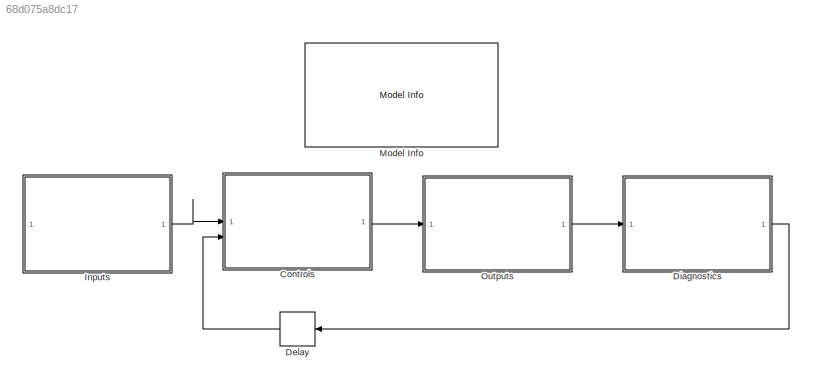
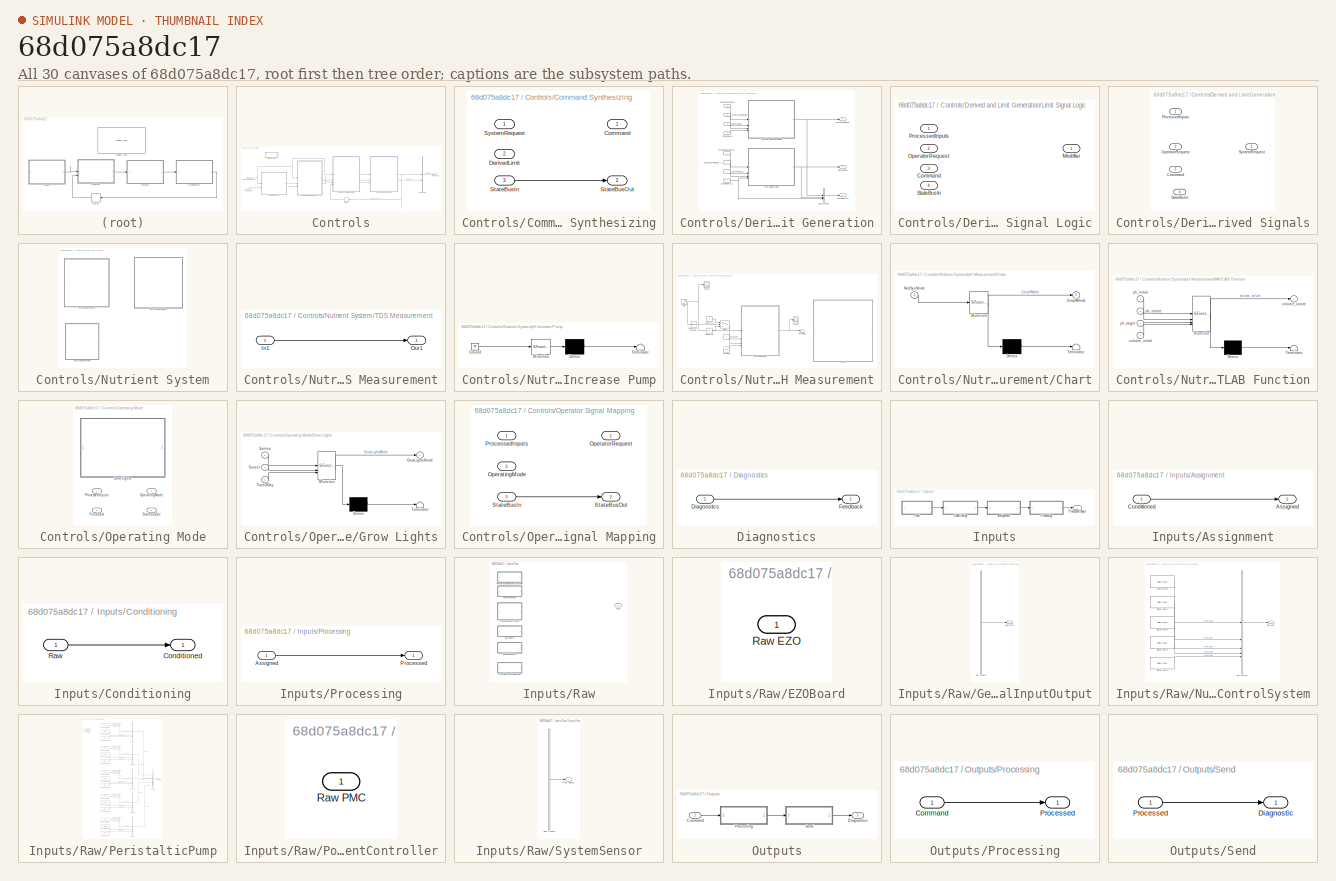
[diagram: thumbnail index - all 30 canvases of the model, root first then tree order]
MODEL slx_68d075a8dc17
KIND model
CONFIG AbsTol = auto
CONFIG EnableMultiTasking = off
CONFIG FixedStep = auto
CONFIG MaxStep = auto
CONFIG MinStep = auto
CONFIG RelTol = 1e-3
CONFIG SampleTimeConstraint = Unconstrained
CONFIG SolverName = VariableStepAuto
CONFIG StartTime = 0.0
CONFIG StopTime = inf
WORKSPACE source: mxarray member
WORKSPACE MyTestVariable: Simulink.Parameter (value not decoded)
BLOCK [SubSystem] Controls
BLOCK [BusCreator] Controls/Bus Creator
  DisplayOption = bar
  InheritFromInputs = on
  Inputs = 2
BLOCK [Outport] Controls/Command
BLOCK [SubSystem] Controls/Command Synthesizing
BLOCK [Outport] Controls/Command Synthesizing/Command
BLOCK [Inport] Controls/Command Synthesizing/DerivedLimit
  Port = 2
BLOCK [Inport] Controls/Command Synthesizing/StateBusIn
  Port = 3
BLOCK [Outport] Controls/Command Synthesizing/StateBusOut
  Port = 2
BLOCK [Inport] Controls/Command Synthesizing/SystemRequest
BLOCK [Delay] Controls/Delay
  DelayLength = 1
  InputPortMap = u0
BLOCK [SubSystem] Controls/Derived and Limit Generation
BLOCK [BusCreator] Controls/Derived and Limit Generation/Bus Creator
  DisplayOption = bar
  InheritFromInputs = on
  Inputs = 3
BLOCK [Inport] Controls/Derived and Limit Generation/Commands
  Port = 4
BLOCK [InportShadow] Controls/Derived and Limit Generation/Commands_1
  Port = 4
BLOCK [Outport] Controls/Derived and Limit Generation/DerivedLimit
  Port = 2
BLOCK [SubSystem] Controls/Derived and Limit Generation/Limit Signal Logic
BLOCK [Inport] Controls/Derived and Limit Generation/Limit Signal Logic/Command
  Port = 3
BLOCK [Outport] Controls/Derived and Limit Generation/Limit Signal Logic/Modifier
BLOCK [Inport] Controls/Derived and Limit Generation/Limit Signal Logic/OperatorRequest
  Port = 2
BLOCK [Inport] Controls/Derived and Limit Generation/Limit Signal Logic/ProcessedInputs
BLOCK [Inport] Controls/Derived and Limit Generation/Limit Signal Logic/StateBusIn
  Port = 4
BLOCK [Inport] Controls/Derived and Limit Generation/OperatorRequest
  Port = 2
BLOCK [InportShadow] Controls/Derived and Limit Generation/OperatorRequest_1
  Port = 2
BLOCK [Inport] Controls/Derived and Limit Generation/ProcessedInputs
BLOCK [InportShadow] Controls/Derived and Limit Generation/ProcessedInputs_1
BLOCK [Inport] Controls/Derived and Limit Generation/StateBusIn
  Port = 3
BLOCK [InportShadow] Controls/Derived and Limit Generation/StateBusIn_1
  Port = 3
BLOCK [Outport] Controls/Derived and Limit Generation/StateBusOut
  Port = 3
BLOCK [SubSystem] Controls/Derived and Limit Generation/System Derived Signals
BLOCK [Inport] Controls/Derived and Limit Generation/System Derived Signals/Command
  Port = 3
BLOCK [Inport] Controls/Derived and Limit Generation/System Derived Signals/OperatorRequest
  Port = 2
BLOCK [Inport] Controls/Derived and Limit Generation/System Derived Signals/ProcessedInputs
BLOCK [Inport] Controls/Derived and Limit Generation/System Derived Signals/StateBusIn
  Port = 4
BLOCK [Outport] Controls/Derived and Limit Generation/System Derived Signals/SystemRequest
BLOCK [Outport] Controls/Derived and Limit Generation/SystemRequest
BLOCK [Inport] Controls/Feedback
  Port = 2
BLOCK [SubSystem] Controls/Nutrient System
BLOCK [SubSystem] Controls/Nutrient System/TDS Measurement
BLOCK [Inport] Controls/Nutrient System/TDS Measurement/In1
BLOCK [Outport] Controls/Nutrient System/TDS Measurement/Out1
BLOCK [SubSystem] Controls/Nutrient System/pH Increase Pump
  ErrorFcn = Stateflow.Translate.translate
  PermitHierarchicalResolution = ExplicitOnly
  SFBlockType = Chart
  TreatAsAtomicUnit = on
BLOCK [Demux] Controls/Nutrient System/pH Increase Pump/ Demux 
  Outputs = 1
BLOCK [Ground] Controls/Nutrient System/pH Increase Pump/ Ground 
BLOCK [S-Function] Controls/Nutrient System/pH Increase Pump/ SFunction 
  EnableBusSupport = off
  FunctionName = sf_sfun
  PortCounts = [1 1]
  SFcnIsStateOwnerBlock = off
  SFunctionDeploymentMode = off
  Tag = Stateflow S-Function 1
BLOCK [Terminator] Controls/Nutrient System/pH Increase Pump/ Terminator 
BLOCK [SubSystem] Controls/Nutrient System/pH Measurement
BLOCK [SubSystem] Controls/Nutrient System/pH Measurement/Chart
  ErrorFcn = Stateflow.Translate.translate
  PermitHierarchicalResolution = ExplicitOnly
  SFBlockType = Chart
  TreatAsAtomicUnit = on
BLOCK [Demux] Controls/Nutrient System/pH Measurement/Chart/ Demux 
  Outputs = 1
BLOCK [S-Function] Controls/Nutrient System/pH Measurement/Chart/ SFunction 
  EnableBusSupport = off
  FunctionName = sf_sfun
  PortCounts = [1 2]
  SFcnIsStateOwnerBlock = off
  SFunctionDeploymentMode = off
  Tag = Stateflow S-Function 3
BLOCK [Terminator] Controls/Nutrient System/pH Measurement/Chart/ Terminator 
BLOCK [Outport] Controls/Nutrient System/pH Measurement/Chart/ConpHMode
BLOCK [Inport] Controls/Nutrient System/pH Measurement/Chart/NutrSysMode
BLOCK [Reference] Controls/Nutrient System/pH Measurement/Compare To Constant  REF=simulink/Logic and Bit
Operations/Compare
To Constant
  SourceBlock = simulink/Logic and Bit\nOperations/Compare\nTo Constant
  SourceType = Compare To Constant
BLOCK [Constant] Controls/Nutrient System/pH Measurement/Constant2
  Value = 100
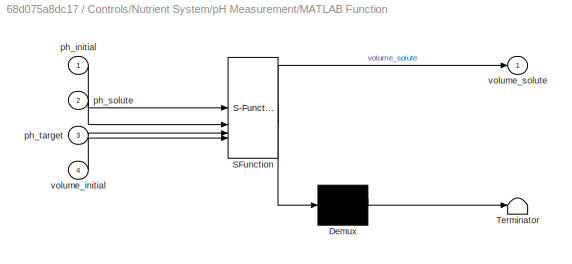
BLOCK [SubSystem] Controls/Nutrient System/pH Measurement/MATLAB Function
  ErrorFcn = Stateflow.Translate.translate
  PermitHierarchicalResolution = ExplicitOnly
  SFBlockType = MATLAB Function
  TreatAsAtomicUnit = on
BLOCK [Demux] Controls/Nutrient System/pH Measurement/MATLAB Function/ Demux 
  Outputs = 1
BLOCK [S-Function] Controls/Nutrient System/pH Measurement/MATLAB Function/ SFunction 
  EnableBusSupport = off
  FunctionName = sf_sfun
  PortCounts = [4 2]
  SFcnIsStateOwnerBlock = off
  SFunctionDeploymentMode = off
  Tag = Stateflow S-Function 2
BLOCK [Terminator] Controls/Nutrient System/pH Measurement/MATLAB Function/ Terminator 
BLOCK [Inport] Controls/Nutrient System/pH Measurement/MATLAB Function/ph_initial
BLOCK [Inport] Controls/Nutrient System/pH Measurement/MATLAB Function/ph_solute
  Port = 2
BLOCK [Inport] Controls/Nutrient System/pH Measurement/MATLAB Function/ph_target
  Port = 3
BLOCK [Inport] Controls/Nutrient System/pH Measurement/MATLAB Function/volume_initial
  Port = 4
BLOCK [Outport] Controls/Nutrient System/pH Measurement/MATLAB Function/volume_solute
BLOCK [Scope] Controls/Nutrient System/pH Measurement/Scope
  Floating = off
  NumInputPorts = 1
  ScopeSpecificationString = Simulink.scopes.TimeScopeBlockCfg('CurrentConfiguration', extmgr.ConfigurationSet(extmgr.Configuration('Core','General UI',true),extmgr.Configuration('Core','Source UI',true),extmgr.Configuration('Sources','WiredSimulink',true,'DataLoggingVariableName','ScopeData1'),extmgr.Configuration('Visuals','Time Domain',true,'SerializedDisplays',{struct('MinYLimReal','5.875','MaxYLimReal','7.125','YLabelRea...<+1409ch>
BLOCK [Scope] Controls/Nutrient System/pH Measurement/Scope1
  Floating = off
  NumInputPorts = 1
  ScopeSpecificationString = Simulink.scopes.TimeScopeBlockCfg('CurrentConfiguration', extmgr.ConfigurationSet(extmgr.Configuration('Core','General UI',true),extmgr.Configuration('Core','Source UI',true),extmgr.Configuration('Sources','WiredSimulink',true),extmgr.Configuration('Visuals','Time Domain',true,'SerializedDisplays',{struct('MinYLimReal','-0.00239','MaxYLimReal','0.00308','YLabelReal','','MinYLimMag','0.00000','MaxY...<+1734ch>
BLOCK [Step] Controls/Nutrient System/pH Measurement/Step
  After = 7
  Before = 6
  SampleTime = 0
BLOCK [Switch] Controls/Nutrient System/pH Measurement/Switch
  Criteria = u2 > Threshold
  InputSameDT = off
  SaturateOnIntegerOverflow = off
BLOCK [Terminator] Controls/Nutrient System/pH Measurement/Terminator
BLOCK [Constant] Controls/Nutrient System/pH Measurement/pHDecrVal
  Value = 14
BLOCK [Constant] Controls/Nutrient System/pH Measurement/pHIncrVal
BLOCK [Constant] Controls/Nutrient System/pH Measurement/pHTarget
  Value = 6
BLOCK [SubSystem] Controls/Operating Mode
BLOCK [Inport] Controls/Operating Mode/Feedback
  Port = 2
BLOCK [SubSystem] Controls/Operating Mode/Grow Lights
  ErrorFcn = Stateflow.Translate.translate
  PermitHierarchicalResolution = ExplicitOnly
  SFBlockType = Chart
  TreatAsAtomicUnit = on
BLOCK [Demux] Controls/Operating Mode/Grow Lights/ Demux 
  Outputs = 1
BLOCK [S-Function] Controls/Operating Mode/Grow Lights/ SFunction 
  EnableBusSupport = off
  FunctionName = sf_sfun
  PortCounts = [3 2]
  SFcnIsStateOwnerBlock = off
  SFunctionDeploymentMode = off
  Tag = Stateflow S-Function 4
BLOCK [Terminator] Controls/Operating Mode/Grow Lights/ Terminator 
BLOCK [Outport] Controls/Operating Mode/Grow Lights/GrowLightsMode
BLOCK [Inport] Controls/Operating Mode/Grow Lights/Sunrise
BLOCK [Inport] Controls/Operating Mode/Grow Lights/Sunset
  Port = 2
BLOCK [Inport] Controls/Operating Mode/Grow Lights/TimeOfDay
  Port = 3
BLOCK [Outport] Controls/Operating Mode/OperatingMode
BLOCK [Inport] Controls/Operating Mode/ProcessedInputs
BLOCK [Outport] Controls/Operating Mode/StateBusOut
  Port = 2
BLOCK [SubSystem] Controls/Operator Signal Mapping
BLOCK [Inport] Controls/Operator Signal Mapping/OperatingMode
  Port = 2
BLOCK [Outport] Controls/Operator Signal Mapping/OperatorRequest
BLOCK [Inport] Controls/Operator Signal Mapping/ProcessedInputs
BLOCK [Inport] Controls/Operator Signal Mapping/StateBusIn
  Port = 3
BLOCK [Outport] Controls/Operator Signal Mapping/StateBusOut
  Port = 2
BLOCK [Inport] Controls/Processed Inputs
BLOCK [Delay] Delay
  DelayLength = 1
  InitialCondition = 0
  InputPortMap = u0
BLOCK [SubSystem] Diagnostics
BLOCK [Inport] Diagnostics/Diagnostics
BLOCK [Outport] Diagnostics/Feedback
BLOCK [SubSystem] Inputs
BLOCK [SubSystem] Inputs/Assignment
BLOCK [Outport] Inputs/Assignment/Assigned
BLOCK [Inport] Inputs/Assignment/Conditioned
BLOCK [SubSystem] Inputs/Conditioning
BLOCK [Outport] Inputs/Conditioning/Conditioned
BLOCK [Inport] Inputs/Conditioning/Raw
BLOCK [Outport] Inputs/Processed Inputs
BLOCK [SubSystem] Inputs/Processing
BLOCK [Inport] Inputs/Processing/Assigned
BLOCK [Outport] Inputs/Processing/Processed
BLOCK [SubSystem] Inputs/Raw
BLOCK [SubSystem] Inputs/Raw/EZOBoard
BLOCK [Outport] Inputs/Raw/EZOBoard/Raw EZO
BLOCK [SubSystem] Inputs/Raw/GeneralInputOutput
BLOCK [BusCreator] Inputs/Raw/GeneralInputOutput/Bus Creator
  DisplayOption = bar
  InheritFromInputs = on
  Inputs = 15
BLOCK [Outport] Inputs/Raw/GeneralInputOutput/Raw GPIO
BLOCK [SubSystem] Inputs/Raw/NutrientControlSystem
BLOCK [BusCreator] Inputs/Raw/NutrientControlSystem/Bus Creator
  DisplayOption = bar
  InheritFromInputs = on
  Inputs = 5
BLOCK [Reference] Inputs/Raw/NutrientControlSystem/Chem1LvlMin  REF=arduinolib/Digital Input
  SourceBlock = arduinolib/Digital Input
  SourceType = Arduino Digital Input
BLOCK [Reference] Inputs/Raw/NutrientControlSystem/Digital Input1  REF=arduinolib/Digital Input
  SourceBlock = arduinolib/Digital Input
  SourceType = Arduino Digital Input
BLOCK [Reference] Inputs/Raw/NutrientControlSystem/Digital Input2  REF=arduinolib/Digital Input
  SourceBlock = arduinolib/Digital Input
  SourceType = Arduino Digital Input
BLOCK [Reference] Inputs/Raw/NutrientControlSystem/Digital Input3  REF=arduinolib/Digital Input
  SourceBlock = arduinolib/Digital Input
  SourceType = Arduino Digital Input
BLOCK [Reference] Inputs/Raw/NutrientControlSystem/Digital Input4  REF=arduinolib/Digital Input
  SourceBlock = arduinolib/Digital Input
  SourceType = Arduino Digital Input
BLOCK [Outport] Inputs/Raw/NutrientControlSystem/Raw NCS
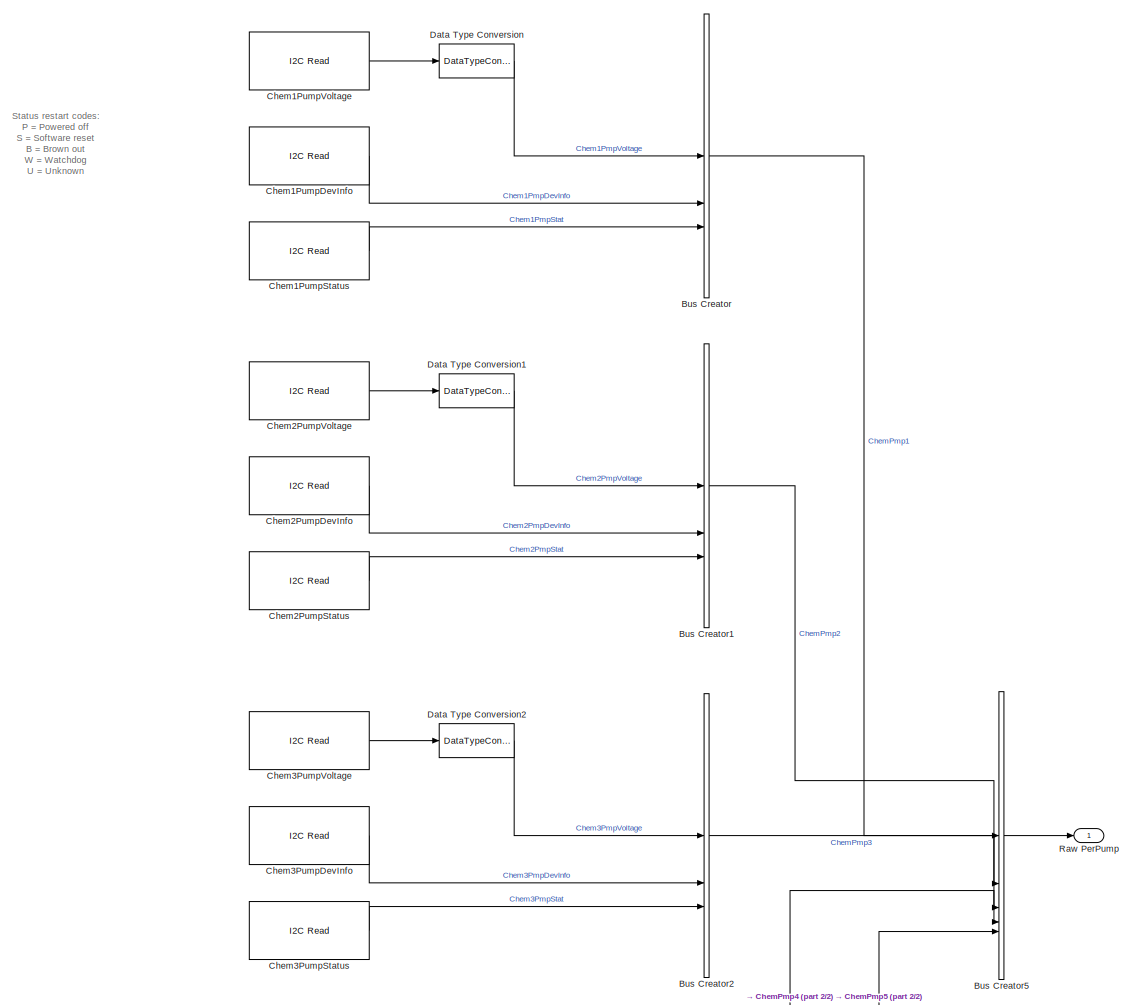
[diagram: Inputs/Raw/PeristalticPump - part 1/2, full width, top band]
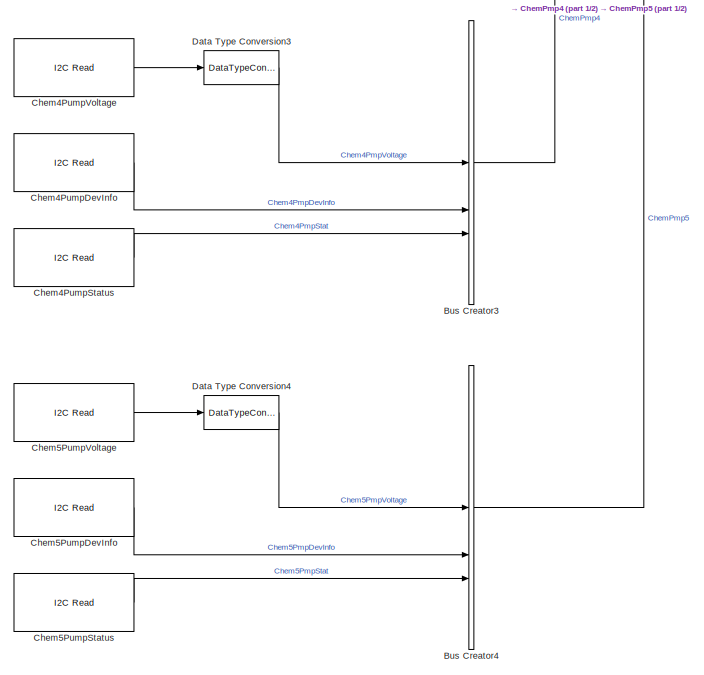
[diagram: Inputs/Raw/PeristalticPump - part 2/2, bottom center region]
BLOCK [SubSystem] Inputs/Raw/PeristalticPump
BLOCK [BusCreator] Inputs/Raw/PeristalticPump/Bus Creator
  DisplayOption = bar
  InheritFromInputs = on
  Inputs = 3
BLOCK [BusCreator] Inputs/Raw/PeristalticPump/Bus Creator1
  DisplayOption = bar
  InheritFromInputs = on
  Inputs = 3
BLOCK [BusCreator] Inputs/Raw/PeristalticPump/Bus Creator2
  DisplayOption = bar
  InheritFromInputs = on
  Inputs = 3
BLOCK [BusCreator] Inputs/Raw/PeristalticPump/Bus Creator3
  DisplayOption = bar
  InheritFromInputs = on
  Inputs = 3
BLOCK [BusCreator] Inputs/Raw/PeristalticPump/Bus Creator4
  DisplayOption = bar
  InheritFromInputs = on
  Inputs = 3
BLOCK [BusCreator] Inputs/Raw/PeristalticPump/Bus Creator5
  DisplayOption = bar
  InheritFromInputs = on
  Inputs = 5
BLOCK [Reference] Inputs/Raw/PeristalticPump/Chem1PumpDevInfo  REF=arduinolib/I2C Read
  SourceBlock = arduinolib/I2C Read
  SourceType = I2C Read
BLOCK [Reference] Inputs/Raw/PeristalticPump/Chem1PumpStatus  REF=arduinolib/I2C Read
  SourceBlock = arduinolib/I2C Read
  SourceType = I2C Read
BLOCK [Reference] Inputs/Raw/PeristalticPump/Chem1PumpVoltage  REF=arduinolib/I2C Read
  SourceBlock = arduinolib/I2C Read
  SourceType = I2C Read
BLOCK [Reference] Inputs/Raw/PeristalticPump/Chem2PumpDevInfo  REF=arduinolib/I2C Read
  SourceBlock = arduinolib/I2C Read
  SourceType = I2C Read
BLOCK [Reference] Inputs/Raw/PeristalticPump/Chem2PumpStatus  REF=arduinolib/I2C Read
  SourceBlock = arduinolib/I2C Read
  SourceType = I2C Read
BLOCK [Reference] Inputs/Raw/PeristalticPump/Chem2PumpVoltage  REF=arduinolib/I2C Read
  SourceBlock = arduinolib/I2C Read
  SourceType = I2C Read
BLOCK [Reference] Inputs/Raw/PeristalticPump/Chem3PumpDevInfo  REF=arduinolib/I2C Read
  SourceBlock = arduinolib/I2C Read
  SourceType = I2C Read
BLOCK [Reference] Inputs/Raw/PeristalticPump/Chem3PumpStatus  REF=arduinolib/I2C Read
  SourceBlock = arduinolib/I2C Read
  SourceType = I2C Read
BLOCK [Reference] Inputs/Raw/PeristalticPump/Chem3PumpVoltage  REF=arduinolib/I2C Read
  SourceBlock = arduinolib/I2C Read
  SourceType = I2C Read
BLOCK [Reference] Inputs/Raw/PeristalticPump/Chem4PumpDevInfo  REF=arduinolib/I2C Read
  SourceBlock = arduinolib/I2C Read
  SourceType = I2C Read
BLOCK [Reference] Inputs/Raw/PeristalticPump/Chem4PumpStatus  REF=arduinolib/I2C Read
  SourceBlock = arduinolib/I2C Read
  SourceType = I2C Read
BLOCK [Reference] Inputs/Raw/PeristalticPump/Chem4PumpVoltage  REF=arduinolib/I2C Read
  SourceBlock = arduinolib/I2C Read
  SourceType = I2C Read
BLOCK [Reference] Inputs/Raw/PeristalticPump/Chem5PumpDevInfo  REF=arduinolib/I2C Read
  SourceBlock = arduinolib/I2C Read
  SourceType = I2C Read
BLOCK [Reference] Inputs/Raw/PeristalticPump/Chem5PumpStatus  REF=arduinolib/I2C Read
  SourceBlock = arduinolib/I2C Read
  SourceType = I2C Read
BLOCK [Reference] Inputs/Raw/PeristalticPump/Chem5PumpVoltage  REF=arduinolib/I2C Read
  SourceBlock = arduinolib/I2C Read
  SourceType = I2C Read
BLOCK [DataTypeConversion] Inputs/Raw/PeristalticPump/Data Type Conversion
  LockScale = on
  OutDataTypeStr = int8
  RndMeth = Floor
  SaturateOnIntegerOverflow = off
BLOCK [DataTypeConversion] Inputs/Raw/PeristalticPump/Data Type Conversion1
  LockScale = on
  OutDataTypeStr = int8
  RndMeth = Floor
  SaturateOnIntegerOverflow = off
BLOCK [DataTypeConversion] Inputs/Raw/PeristalticPump/Data Type Conversion2
  LockScale = on
  OutDataTypeStr = int8
  RndMeth = Floor
  SaturateOnIntegerOverflow = off
BLOCK [DataTypeConversion] Inputs/Raw/PeristalticPump/Data Type Conversion3
  LockScale = on
  OutDataTypeStr = int8
  RndMeth = Floor
  SaturateOnIntegerOverflow = off
BLOCK [DataTypeConversion] Inputs/Raw/PeristalticPump/Data Type Conversion4
  LockScale = on
  OutDataTypeStr = int8
  RndMeth = Floor
  SaturateOnIntegerOverflow = off
BLOCK [Outport] Inputs/Raw/PeristalticPump/Raw PerPump
BLOCK [SubSystem] Inputs/Raw/PowerManagementController
BLOCK [Outport] Inputs/Raw/PowerManagementController/Raw PMC
BLOCK [Outport] Inputs/Raw/Raw
BLOCK [SubSystem] Inputs/Raw/SystemSensor
BLOCK [BusCreator] Inputs/Raw/SystemSensor/Bus Creator
  DisplayOption = bar
  InheritFromInputs = on
  Inputs = 5
BLOCK [Outport] Inputs/Raw/SystemSensor/Raw Sensor
BLOCK [Reference] Model Info  REF=simulink/Model-Wide
Utilities/Model Info
  SourceBlock = simulink/Model-Wide\nUtilities/Model Info
  SourceType = CMBlock
BLOCK [SubSystem] Outputs
BLOCK [Inport] Outputs/Command
BLOCK [Outport] Outputs/Diagnostics
BLOCK [SubSystem] Outputs/Processing
BLOCK [Inport] Outputs/Processing/Command
BLOCK [Outport] Outputs/Processing/Processed
BLOCK [SubSystem] Outputs/Send
BLOCK [Outport] Outputs/Send/Diagnostic
BLOCK [Inport] Outputs/Send/Processed
ANNOTATION Inputs/Raw/PeristalticPump: Status restart codes: P = Powered off S = Software reset B = Brown out W = Watchdog U = Unknown
LINE Controls/Bus Creator:1 -> Controls/Command:1
LINE Controls/Command Synthesizing/StateBusIn:1 -> Controls/Command Synthesizing/StateBusOut:1
NET Controls/Command Synthesizing:1 -> Controls/Bus Creator:1, Controls/Delay:1
LINE Controls/Command Synthesizing:2 -> Controls/Bus Creator:2
LINE Controls/Delay:1 -> Controls/Derived and Limit Generation:4
LINE Controls/Derived and Limit Generation/Bus Creator:1 -> Controls/Derived and Limit Generation/StateBusOut:1
LINE Controls/Derived and Limit Generation/Commands:1 -> Controls/Derived and Limit Generation/System Derived Signals:3
LINE Controls/Derived and Limit Generation/Commands_1:1 -> Controls/Derived and Limit Generation/Limit Signal Logic:3
NET Controls/Derived and Limit Generation/Limit Signal Logic:1 -> Controls/Derived and Limit Generation/Bus Creator:2, Controls/Derived and Limit Generation/DerivedLimit:1
LINE Controls/Derived and Limit Generation/OperatorRequest:1 -> Controls/Derived and Limit Generation/System Derived Signals:2
LINE Controls/Derived and Limit Generation/OperatorRequest_1:1 -> Controls/Derived and Limit Generation/Limit Signal Logic:2
LINE Controls/Derived and Limit Generation/ProcessedInputs:1 -> Controls/Derived and Limit Generation/System Derived Signals:1
LINE Controls/Derived and Limit Generation/ProcessedInputs_1:1 -> Controls/Derived and Limit Generation/Limit Signal Logic:1
LINE Controls/Derived and Limit Generation/StateBusIn:1 -> Controls/Derived and Limit Generation/System Derived Signals:4
NET Controls/Derived and Limit Generation/StateBusIn_1:1 -> Controls/Derived and Limit Generation/Bus Creator:3, Controls/Derived and Limit Generation/Limit Signal Logic:4
NET Controls/Derived and Limit Generation/System Derived Signals:1 -> Controls/Derived and Limit Generation/Bus Creator:1, Controls/Derived and Limit Generation/SystemRequest:1
LINE Controls/Derived and Limit Generation:1 -> Controls/Command Synthesizing:1
LINE Controls/Derived and Limit Generation:2 -> Controls/Command Synthesizing:2
LINE Controls/Derived and Limit Generation:3 -> Controls/Command Synthesizing:3
LINE Controls/Feedback:1 -> Controls/Operating Mode:2
LINE Controls/Nutrient System/TDS Measurement/In1:1 -> Controls/Nutrient System/TDS Measurement/Out1:1
LINE Controls/Nutrient System/pH Measurement/Compare To Constant:1 -> Controls/Nutrient System/pH Measurement/Switch:2
LINE Controls/Nutrient System/pH Measurement/Constant2:1 -> Controls/Nutrient System/pH Measurement/MATLAB Function:4
NET Controls/Nutrient System/pH Measurement/MATLAB Function:1 -> Controls/Nutrient System/pH Measurement/Scope1:1, Controls/Nutrient System/pH Measurement/Terminator:1
NET Controls/Nutrient System/pH Measurement/Step:1 -> Controls/Nutrient System/pH Measurement/Compare To Constant:1, Controls/Nutrient System/pH Measurement/MATLAB Function:1, Controls/Nutrient System/pH Measurement/Scope:1
LINE Controls/Nutrient System/pH Measurement/Switch:1 -> Controls/Nutrient System/pH Measurement/MATLAB Function:2
LINE Controls/Nutrient System/pH Measurement/pHDecrVal:1 -> Controls/Nutrient System/pH Measurement/Switch:3
LINE Controls/Nutrient System/pH Measurement/pHIncrVal:1 -> Controls/Nutrient System/pH Measurement/Switch:1
LINE Controls/Nutrient System/pH Measurement/pHTarget:1 -> Controls/Nutrient System/pH Measurement/MATLAB Function:3
LINE Controls/Operating Mode:1 -> Controls/Operator Signal Mapping:2
LINE Controls/Operating Mode:2 -> Controls/Operator Signal Mapping:3
LINE Controls/Operator Signal Mapping/StateBusIn:1 -> Controls/Operator Signal Mapping/StateBusOut:1
LINE Controls/Operator Signal Mapping:1 -> Controls/Derived and Limit Generation:2
LINE Controls/Operator Signal Mapping:2 -> Controls/Derived and Limit Generation:3
NET Controls/Processed Inputs:1 -> Controls/Derived and Limit Generation:1, Controls/Operating Mode:1, Controls/Operator Signal Mapping:1
LINE Controls:1 -> Outputs:1
LINE Delay:1 -> Controls:2
LINE Diagnostics/Diagnostics:1 -> Diagnostics/Feedback:1
LINE Diagnostics:1 -> Delay:1
LINE Inputs/Assignment/Conditioned:1 -> Inputs/Assignment/Assigned:1
LINE Inputs/Assignment:1 -> Inputs/Processing:1
LINE Inputs/Conditioning/Raw:1 -> Inputs/Conditioning/Conditioned:1
LINE Inputs/Conditioning:1 -> Inputs/Assignment:1
LINE Inputs/Processing/Assigned:1 -> Inputs/Processing/Processed:1
LINE Inputs/Processing:1 -> Inputs/Processed Inputs:1
LINE Inputs/Raw/GeneralInputOutput/Bus Creator:1 -> Inputs/Raw/GeneralInputOutput/Raw GPIO:1
LINE Inputs/Raw/NutrientControlSystem/Bus Creator:1 -> Inputs/Raw/NutrientControlSystem/Raw NCS:1
LINE Inputs/Raw/NutrientControlSystem/Chem1LvlMin:1 -> Inputs/Raw/NutrientControlSystem/Bus Creator:1
LINE Inputs/Raw/NutrientControlSystem/Digital Input1:1 -> Inputs/Raw/NutrientControlSystem/Bus Creator:2
LINE Inputs/Raw/NutrientControlSystem/Digital Input2:1 -> Inputs/Raw/NutrientControlSystem/Bus Creator:3
LINE Inputs/Raw/NutrientControlSystem/Digital Input3:1 -> Inputs/Raw/NutrientControlSystem/Bus Creator:4
LINE Inputs/Raw/NutrientControlSystem/Digital Input4:1 -> Inputs/Raw/NutrientControlSystem/Bus Creator:5
LINE Inputs/Raw/PeristalticPump/Bus Creator1:1 -> Inputs/Raw/PeristalticPump/Bus Creator5:2
LINE Inputs/Raw/PeristalticPump/Bus Creator2:1 -> Inputs/Raw/PeristalticPump/Bus Creator5:3
LINE Inputs/Raw/PeristalticPump/Bus Creator3:1 -> Inputs/Raw/PeristalticPump/Bus Creator5:4
LINE Inputs/Raw/PeristalticPump/Bus Creator4:1 -> Inputs/Raw/PeristalticPump/Bus Creator5:5
LINE Inputs/Raw/PeristalticPump/Bus Creator5:1 -> Inputs/Raw/PeristalticPump/Raw PerPump:1
LINE Inputs/Raw/PeristalticPump/Bus Creator:1 -> Inputs/Raw/PeristalticPump/Bus Creator5:1
LINE Inputs/Raw/PeristalticPump/Chem1PumpDevInfo:1 -> Inputs/Raw/PeristalticPump/Bus Creator:2
LINE Inputs/Raw/PeristalticPump/Chem1PumpStatus:1 -> Inputs/Raw/PeristalticPump/Bus Creator:3
LINE Inputs/Raw/PeristalticPump/Chem1PumpVoltage:1 -> Inputs/Raw/PeristalticPump/Data Type Conversion:1
LINE Inputs/Raw/PeristalticPump/Chem2PumpDevInfo:1 -> Inputs/Raw/PeristalticPump/Bus Creator1:2
LINE Inputs/Raw/PeristalticPump/Chem2PumpStatus:1 -> Inputs/Raw/PeristalticPump/Bus Creator1:3
LINE Inputs/Raw/PeristalticPump/Chem2PumpVoltage:1 -> Inputs/Raw/PeristalticPump/Data Type Conversion1:1
LINE Inputs/Raw/PeristalticPump/Chem3PumpDevInfo:1 -> Inputs/Raw/PeristalticPump/Bus Creator2:2
LINE Inputs/Raw/PeristalticPump/Chem3PumpStatus:1 -> Inputs/Raw/PeristalticPump/Bus Creator2:3
LINE Inputs/Raw/PeristalticPump/Chem3PumpVoltage:1 -> Inputs/Raw/PeristalticPump/Data Type Conversion2:1
LINE Inputs/Raw/PeristalticPump/Chem4PumpDevInfo:1 -> Inputs/Raw/PeristalticPump/Bus Creator3:2
LINE Inputs/Raw/PeristalticPump/Chem4PumpStatus:1 -> Inputs/Raw/PeristalticPump/Bus Creator3:3
LINE Inputs/Raw/PeristalticPump/Chem4PumpVoltage:1 -> Inputs/Raw/PeristalticPump/Data Type Conversion3:1
LINE Inputs/Raw/PeristalticPump/Chem5PumpDevInfo:1 -> Inputs/Raw/PeristalticPump/Bus Creator4:2
LINE Inputs/Raw/PeristalticPump/Chem5PumpStatus:1 -> Inputs/Raw/PeristalticPump/Bus Creator4:3
LINE Inputs/Raw/PeristalticPump/Chem5PumpVoltage:1 -> Inputs/Raw/PeristalticPump/Data Type Conversion4:1
LINE Inputs/Raw/PeristalticPump/Data Type Conversion1:1 -> Inputs/Raw/PeristalticPump/Bus Creator1:1
LINE Inputs/Raw/PeristalticPump/Data Type Conversion2:1 -> Inputs/Raw/PeristalticPump/Bus Creator2:1
LINE Inputs/Raw/PeristalticPump/Data Type Conversion3:1 -> Inputs/Raw/PeristalticPump/Bus Creator3:1
LINE Inputs/Raw/PeristalticPump/Data Type Conversion4:1 -> Inputs/Raw/PeristalticPump/Bus Creator4:1
LINE Inputs/Raw/PeristalticPump/Data Type Conversion:1 -> Inputs/Raw/PeristalticPump/Bus Creator:1
LINE Inputs/Raw/SystemSensor/Bus Creator:1 -> Inputs/Raw/SystemSensor/Raw Sensor:1
LINE Inputs/Raw:1 -> Inputs/Conditioning:1
LINE Inputs:1 -> Controls:1
LINE Outputs/Command:1 -> Outputs/Processing:1
LINE Outputs/Processing/Command:1 -> Outputs/Processing/Processed:1
LINE Outputs/Processing:1 -> Outputs/Send:1
LINE Outputs/Send/Processed:1 -> Outputs/Send/Diagnostic:1
LINE Outputs/Send:1 -> Outputs/Diagnostics:1
LINE Outputs:1 -> Diagnostics:1
note: NET lines group one-source signal fan-out (src -> all destinations, sorted); 1:1 wires keep LINE
CHART Controls/Nutrient System/pH Increase Pump states=11 transitions=2
  STATE_LABEL 'Device Information'
  STATE_LABEL 'Calibration'
  STATE_LABEL 'Report'
  STATE_LABEL 'Dispense'
  STATE_LABEL 'Continuous'
  STATE_LABEL 'Volume'
  STATE_LABEL 'Dose'
  STATE_LABEL 'ConstantFlow'
  STATE_LABEL 'Continuous'
  STATE_LABEL 'Volume'
  STATE_LABEL 'Dose'
  STATE_LABEL 'ConstantFlow'
  STATE_LABEL 'Pause'
  STATE_LABEL 'Stop'
  STATE_LABEL 'Sleep'
CHART Controls/Nutrient System/pH Measurement/MATLAB Function states=1 transitions=1
  STATE_LABEL 'eML_blk_kernel()'
  STATE_LABEL 'SCRIPT:\nfunction volume_solute = pHNeutralization(ph_initial, ph_solute, ph_target, volume_initial)\n    %Molarity\n    M_initial = 10^(-ph_initial); %Initial molarity of solution\n    M_solute = 10^(-ph_solute); %Fixed molarity of solute\n    M_target = 10^(-ph_target); %Final or target molarity of solution\n    \n    \nvolume_solute = (M_target*volume_initial - M_initial*volume_initial)/(M_solute-M_tar...<+6ch>'
CHART Controls/Nutrient System/pH Measurement/Chart states=3 transitions=4
  STATE_LABEL 'Measurement\nConpHMode=2;'
  STATE_LABEL 'Sleep\nConpHMode=1;'
  STATE_LABEL 'Calibration\nConpHMode=3;'
CHART Controls/Operating Mode/Grow Lights states=4 transitions=5
  STATE_LABEL 'Morning\nGrowLightsMode=1;\n'
  STATE_LABEL 'Midday\nGrowLightsMode=2;'
  STATE_LABEL 'Afternoon\nGrowLightsMode=3;'
  STATE_LABEL 'Night\nGrowLightsMode=4;'
CHART  states=0 transitions=0
CHART  states=0 transitions=0
CHART  states=0 transitions=0
CHART  states=0 transitions=0
